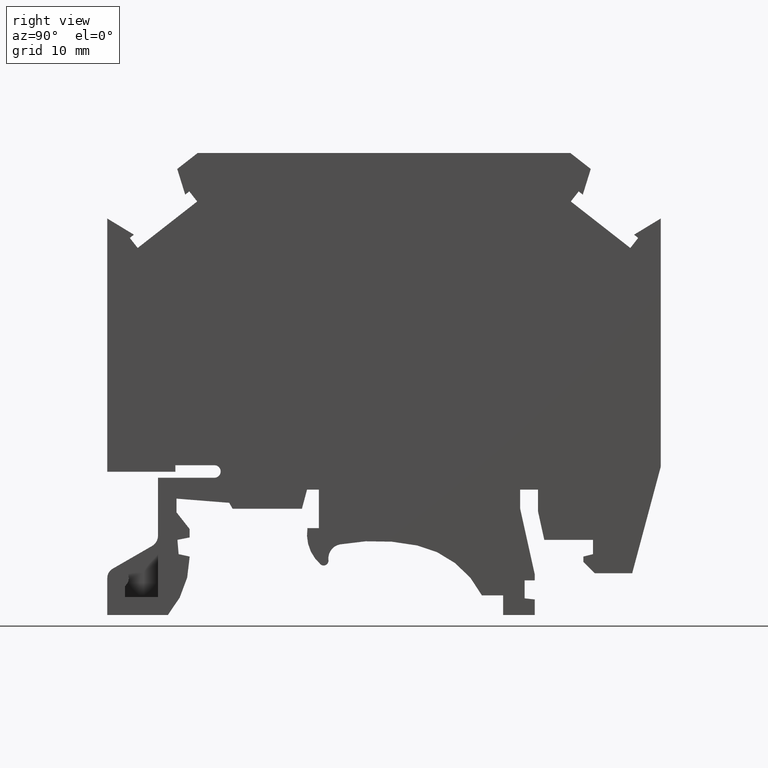
[diagram: clean part render]
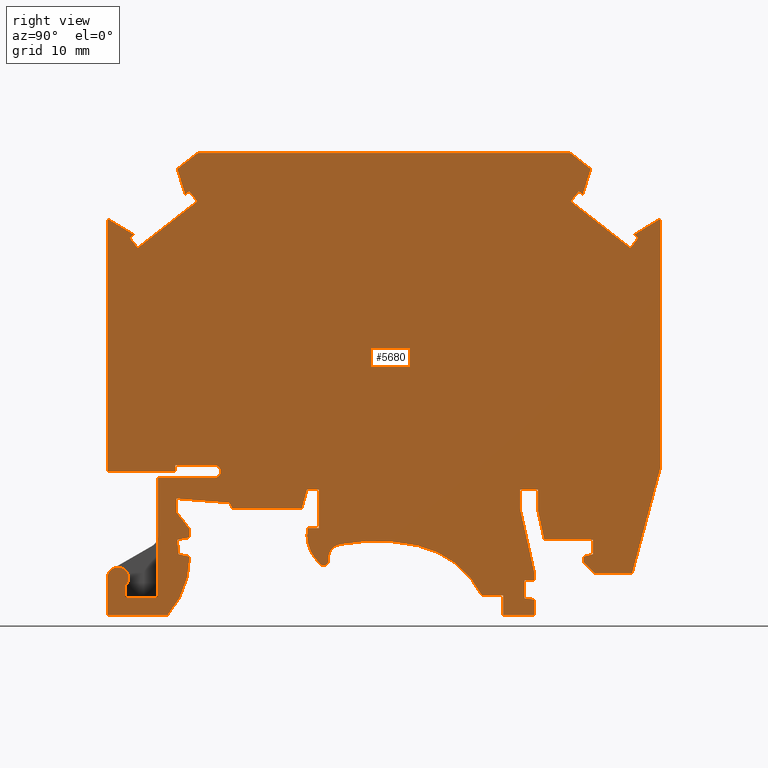
[diagram: same view with one face highlighted and labeled with its STEP entity id]
A machine part, right view. The second image highlights one B-rep face of the part: STEP entity #5680.
In plain terms, the highlighted planar face has unit normal (1, -0, 0).
Its self-contained STEP definition (entity closure, byte-faithful):
#10=CARTESIAN_POINT('',(0.,0.,10.3));
#20=DIRECTION('',(0.,0.,1.));
#30=DIRECTION('',(1.,0.,0.));
#40=AXIS2_PLACEMENT_3D('',#10,#20,#30);
#50=PLANE('',#40);
#60=CARTESIAN_POINT('',(0.,16.2295237515583,10.3));
#70=DIRECTION('',(-1.,0.,0.));
#80=VECTOR('',#70,1.);
#90=LINE('',#60,#80);
#100=CARTESIAN_POINT('',(-39.1520985338078,16.2295237515583,10.3));
#110=VERTEX_POINT('',#100);
#120=CARTESIAN_POINT('',(-44.8520985338077,16.2295237515583,10.3));
#130=VERTEX_POINT('',#120);
#140=EDGE_CURVE('',#110,#130,#90,.T.);
#150=ORIENTED_EDGE('',*,*,#140,.F.);
#160=CARTESIAN_POINT('',(-44.8520985338077,8.88178419700125E-16,10.3));
#170=DIRECTION('',(0.,1.,0.));
#180=VECTOR('',#170,1.);
#190=LINE('',#160,#180);
#200=CARTESIAN_POINT('',(-44.8520985338077,37.4391457022166,10.3));
#210=VERTEX_POINT('',#200);
#220=EDGE_CURVE('',#130,#210,#190,.T.);
#230=ORIENTED_EDGE('',*,*,#220,.F.);
#240=CARTESIAN_POINT('',(0.,10.2034202204307,10.3));
#250=DIRECTION('',(-0.854752900484291,0.519035142465029,0.));
#260=VECTOR('',#250,1.);
#270=LINE('',#240,#260);
#280=CARTESIAN_POINT('',(-42.6201217273836,36.0838131855973,10.3));
#290=VERTEX_POINT('',#280);
#300=EDGE_CURVE('',#290,#210,#270,.T.);
#310=ORIENTED_EDGE('',*,*,#300,.T.);
#320=CARTESIAN_POINT('',(0.,69.3823016911732,10.3));
#330=DIRECTION('',(0.788010753606682,0.61566147532571,0.));
#340=VECTOR('',#330,1.);
#350=LINE('',#320,#340);
#360=CARTESIAN_POINT('',(-42.9648764320866,35.8144612901422,10.3));
#370=VERTEX_POINT('',#360);
#380=EDGE_CURVE('',#370,#290,#350,.T.);
#390=ORIENTED_EDGE('',*,*,#380,.T.);
#400=CARTESIAN_POINT('',(-22.4322131624673,9.53385075155829,10.3));
#410=DIRECTION('',(-0.61566147532571,0.788010753606682,0.));
#420=VECTOR('',#410,1.);
#430=LINE('',#400,#420);
#440=CARTESIAN_POINT('',(-42.3061186534883,34.9712897837833,10.3));
#450=VERTEX_POINT('',#440);
#460=EDGE_CURVE('',#450,#370,#430,.T.);
#470=ORIENTED_EDGE('',*,*,#460,.T.);
#480=CARTESIAN_POINT('',(-56.8069065338077,23.6420326398668,10.3));
#490=DIRECTION('',(-0.788010753606717,-0.615661475325664,0.));
#500=VECTOR('',#490,1.);
#510=LINE('',#480,#500);
#520=CARTESIAN_POINT('',(-37.3219506369257,38.8653486152182,10.3));
#530=VERTEX_POINT('',#520);
#540=EDGE_CURVE('',#530,#450,#510,.T.);
#550=ORIENTED_EDGE('',*,*,#540,.T.);
#560=CARTESIAN_POINT('',(-14.4056729521327,9.53385075155829,10.3));
#570=DIRECTION('',(0.61566147532571,-0.788010753606682,0.));
#580=VECTOR('',#570,1.);
#590=LINE('',#560,#580);
#600=CARTESIAN_POINT('',(-37.9807084155242,39.7085201215773,10.3));
#610=VERTEX_POINT('',#600);
#620=EDGE_CURVE('',#610,#530,#590,.T.);
#630=ORIENTED_EDGE('',*,*,#620,.T.);
#640=CARTESIAN_POINT('',(0.,69.3823016911731,10.3));
#650=DIRECTION('',(0.788010753606682,0.61566147532571,0.));
#660=VECTOR('',#650,1.);
#670=LINE('',#640,#660);
#680=CARTESIAN_POINT('',(-38.3254631202272,39.4391682261223,10.3));
#690=VERTEX_POINT('',#680);
#700=EDGE_CURVE('',#690,#610,#670,.T.);
#710=ORIENTED_EDGE('',*,*,#700,.T.);
#720=CARTESIAN_POINT('',(-26.0660271937965,8.88178419700125E-16,10.3));
#730=DIRECTION('',(0.296834138566406,-0.9549290519099,0.));
#740=VECTOR('',#730,1.);
#750=LINE('',#720,#740);
#760=CARTESIAN_POINT('',(-38.9935626305461,41.5884750243617,10.3));
#770=VERTEX_POINT('',#760);
#780=EDGE_CURVE('',#770,#690,#750,.T.);
#790=ORIENTED_EDGE('',*,*,#780,.T.);
#800=CARTESIAN_POINT('',(0.,72.0535850338968,10.3));
#810=DIRECTION('',(0.788010753606722,0.615661475325658,0.));
#820=VECTOR('',#810,1.);
#830=LINE('',#800,#820);
#840=CARTESIAN_POINT('',(-37.2770985338076,42.9295237515583,10.3));
#850=VERTEX_POINT('',#840);
#860=EDGE_CURVE('',#770,#850,#830,.T.);
#870=ORIENTED_EDGE('',*,*,#860,.F.);
#880=CARTESIAN_POINT('',(-56.8069065338077,42.9295237515583,10.3));
#890=DIRECTION('',(1.,0.,0.));
#900=VECTOR('',#890,1.);
#910=LINE('',#880,#900);
#920=CARTESIAN_POINT('',(-6.07709853380768,42.9295237515583,10.3));
#930=VERTEX_POINT('',#920);
#940=EDGE_CURVE('',#850,#930,#910,.T.);
#950=ORIENTED_EDGE('',*,*,#940,.F.);
#960=CARTESIAN_POINT('',(0.,38.1815740162293,10.3));
#970=DIRECTION('',(-0.788010753606722,0.615661475325658,0.));
#980=VECTOR('',#970,1.);
#990=LINE('',#960,#980);
#1000=CARTESIAN_POINT('',(-4.36063443706933,41.5884750243618,10.3));
#1010=VERTEX_POINT('',#1000);
#1020=EDGE_CURVE('',#1010,#930,#990,.T.);
#1030=ORIENTED_EDGE('',*,*,#1020,.T.);
#1040=CARTESIAN_POINT('',(-17.2881698738166,8.88178419700125E-16,10.3));
#1050=DIRECTION('',(0.296834138566356,0.954929051909915,0.));
#1060=VECTOR('',#1050,1.);
#1070=LINE('',#1040,#1060);
#1080=CARTESIAN_POINT('',(-5.02873394738816,39.4391682261223,10.3));
#1090=VERTEX_POINT('',#1080);
#1100=EDGE_CURVE('',#1090,#1010,#1070,.T.);
#1110=ORIENTED_EDGE('',*,*,#1100,.T.);
#1120=CARTESIAN_POINT('',(0.,35.510290673501,10.3));
#1130=DIRECTION('',(0.788010753606682,-0.61566147532571,0.));
#1140=VECTOR('',#1130,1.);
#1150=LINE('',#1120,#1140);
#1160=CARTESIAN_POINT('',(-5.37348865209113,39.7085201215773,10.3));
#1170=VERTEX_POINT('',#1160);
#1180=EDGE_CURVE('',#1170,#1090,#1150,.T.);
#1190=ORIENTED_EDGE('',*,*,#1180,.T.);
#1200=CARTESIAN_POINT('',(-28.9485241154827,9.53385075155829,10.3));
#1210=DIRECTION('',(-0.61566147532571,-0.788010753606682,0.));
#1220=VECTOR('',#1210,1.);
#1230=LINE('',#1200,#1220);
#1240=CARTESIAN_POINT('',(-6.03224643068964,38.8653486152182,10.3));
#1250=VERTEX_POINT('',#1240);
#1260=EDGE_CURVE('',#1170,#1250,#1230,.T.);
#1270=ORIENTED_EDGE('',*,*,#1260,.F.);
#1280=CARTESIAN_POINT('',(-56.8069065338077,78.534860744549,10.3));
#1290=DIRECTION('',(0.788010753606717,-0.615661475325664,0.));
#1300=VECTOR('',#1290,1.);
#1310=LINE('',#1280,#1300);
#1320=CARTESIAN_POINT('',(-1.04807841412707,34.9712897837833,10.3));
#1330=VERTEX_POINT('',#1320);
#1340=EDGE_CURVE('',#1250,#1330,#1310,.T.);
#1350=ORIENTED_EDGE('',*,*,#1340,.F.);
#1360=CARTESIAN_POINT('',(-20.9219839051481,9.53385075155829,10.3));
#1370=DIRECTION('',(0.61566147532571,0.788010753606682,0.));
#1380=VECTOR('',#1370,1.);
#1390=LINE('',#1360,#1380);
#1400=CARTESIAN_POINT('',(-0.38932063552879,35.8144612901421,10.3));
#1410=VERTEX_POINT('',#1400);
#1420=EDGE_CURVE('',#1330,#1410,#1390,.T.);
#1430=ORIENTED_EDGE('',*,*,#1420,.F.);
#1440=CARTESIAN_POINT('',(0.,35.510290673501,10.3));
#1450=DIRECTION('',(-0.788010753606682,0.61566147532571,0.));
#1460=VECTOR('',#1450,1.);
#1470=LINE('',#1440,#1460);
#1480=CARTESIAN_POINT('',(-0.734075340231865,36.0838131855972,10.3));
#1490=VERTEX_POINT('',#1480);
#1500=EDGE_CURVE('',#1410,#1490,#1470,.T.);
#1510=ORIENTED_EDGE('',*,*,#1500,.F.);
#1520=CARTESIAN_POINT('',(0.,36.5295687935413,10.3));
#1530=DIRECTION('',(-0.854752900484266,-0.519035142465069,0.));
#1540=VECTOR('',#1530,1.);
#1550=LINE('',#1520,#1540);
#1560=CARTESIAN_POINT('',(1.49790146619231,37.4391457022167,10.3));
#1570=VERTEX_POINT('',#1560);
#1580=EDGE_CURVE('',#1570,#1490,#1550,.T.);
#1590=ORIENTED_EDGE('',*,*,#1580,.T.);
#1600=CARTESIAN_POINT('',(1.49790146619231,8.88178419700125E-16,10.3));
#1610=DIRECTION('',(0.,-1.,0.));
#1620=VECTOR('',#1610,1.);
#1630=LINE('',#1600,#1620);
#1640=CARTESIAN_POINT('',(1.49790146619231,16.6504165609533,10.3));
#1650=VERTEX_POINT('',#1640);
#1660=EDGE_CURVE('',#1570,#1650,#1630,.T.);
#1670=ORIENTED_EDGE('',*,*,#1660,.F.);
#1680=CARTESIAN_POINT('',(-0.408976595318013,9.53385075155829,10.3));
#1690=DIRECTION('',(-0.258819045102521,-0.965925826289068,0.));
#1700=VECTOR('',#1690,1.);
#1710=LINE('',#1680,#1700);
#1720=CARTESIAN_POINT('',(-0.892444557849712,7.7295237515582,10.3));
#1730=VERTEX_POINT('',#1720);
#1740=EDGE_CURVE('',#1650,#1730,#1710,.T.);
#1750=ORIENTED_EDGE('',*,*,#1740,.F.);
#1760=CARTESIAN_POINT('',(-56.8069065338077,7.7295237515582,10.3));
#1770=DIRECTION('',(1.,0.,0.));
#1780=VECTOR('',#1770,1.);
#1790=LINE('',#1760,#1780);
#1800=CARTESIAN_POINT('',(-4.02709853380777,7.7295237515582,10.3));
#1810=VERTEX_POINT('',#1800);
#1820=EDGE_CURVE('',#1810,#1730,#1790,.T.);
#1830=ORIENTED_EDGE('',*,*,#1820,.T.);
#1840=CARTESIAN_POINT('',(-56.8069065338077,60.5093317515567,10.3));
#1850=DIRECTION('',(-0.707106781186557,0.707106781186538,0.));
#1860=VECTOR('',#1850,1.);
#1870=LINE('',#1840,#1860);
#1880=CARTESIAN_POINT('',(-4.97709853380779,8.67952375155819,10.3));
#1890=VERTEX_POINT('',#1880);
#1900=EDGE_CURVE('',#1810,#1890,#1870,.T.);
#1910=ORIENTED_EDGE('',*,*,#1900,.F.);
#1920=CARTESIAN_POINT('',(-4.97709853380779,9.53385075155829,10.3));
#1930=DIRECTION('',(0.,1.,0.));
#1940=VECTOR('',#1930,1.);
#1950=LINE('',#1920,#1940);
#1960=CARTESIAN_POINT('',(-4.97709853380779,9.12952375155822,10.3));
#1970=VERTEX_POINT('',#1960);
#1980=EDGE_CURVE('',#1890,#1970,#1950,.T.);
#1990=ORIENTED_EDGE('',*,*,#1980,.F.);
#2000=CARTESIAN_POINT('',(-56.8069065338077,-3.82792824844155,10.3));
#2010=DIRECTION('',(-0.970142500145333,-0.242535625036329,0.));
#2020=VECTOR('',#2010,1.);
#2030=LINE('',#2000,#2020);
#2040=CARTESIAN_POINT('',(-4.17709853380779,9.3295237515582,10.3));
#2050=VERTEX_POINT('',#2040);
#2060=EDGE_CURVE('',#2050,#1970,#2030,.T.);
#2070=ORIENTED_EDGE('',*,*,#2060,.T.);
#2080=CARTESIAN_POINT('',(-4.1770985338078,9.53385075155829,10.3));
#2090=DIRECTION('',(0.,1.,0.));
#2100=VECTOR('',#2090,1.);
#2110=LINE('',#2080,#2100);
#2120=CARTESIAN_POINT('',(-4.17709853380779,10.5295237515582,10.3));
#2130=VERTEX_POINT('',#2120);
#2140=EDGE_CURVE('',#2050,#2130,#2110,.T.);
#2150=ORIENTED_EDGE('',*,*,#2140,.F.);
#2160=CARTESIAN_POINT('',(-56.8069065338077,10.5295237515582,10.3));
#2170=DIRECTION('',(-1.,2.71413735556692E-16,0.));
#2180=VECTOR('',#2170,1.);
#2190=LINE('',#2160,#2180);
#2200=CARTESIAN_POINT('',(-8.25209853380777,10.5295237515582,10.3));
#2210=VERTEX_POINT('',#2200);
#2220=EDGE_CURVE('',#2130,#2210,#2190,.T.);
#2230=ORIENTED_EDGE('',*,*,#2220,.F.);
#2240=CARTESIAN_POINT('',(-8.0313631439701,9.53385075155829,10.3));
#2250=DIRECTION('',(0.216439613938109,-0.976296007119932,0.));
#2260=VECTOR('',#2250,1.);
#2270=LINE('',#2240,#2260);
#2280=CARTESIAN_POINT('',(-8.77709853380779,12.8976457159808,10.3));
#2290=VERTEX_POINT('',#2280);
#2300=EDGE_CURVE('',#2290,#2210,#2270,.T.);
#2310=ORIENTED_EDGE('',*,*,#2300,.T.);
#2320=CARTESIAN_POINT('',(-8.77709853380779,9.53385075155829,10.3));
#2330=DIRECTION('',(0.,1.,0.));
#2340=VECTOR('',#2330,1.);
#2350=LINE('',#2320,#2340);
#2360=CARTESIAN_POINT('',(-8.77709853380779,14.7295237515582,10.3));
#2370=VERTEX_POINT('',#2360);
#2380=EDGE_CURVE('',#2290,#2370,#2350,.T.);
#2390=ORIENTED_EDGE('',*,*,#2380,.F.);
#2400=CARTESIAN_POINT('',(-56.8069065338077,14.7295237515582,10.3));
#2410=DIRECTION('',(-1.,0.,0.));
#2420=VECTOR('',#2410,1.);
#2430=LINE('',#2400,#2420);
#2440=CARTESIAN_POINT('',(-10.2770985338077,14.7295237515582,10.3));
#2450=VERTEX_POINT('',#2440);
#2460=EDGE_CURVE('',#2370,#2450,#2430,.T.);
#2470=ORIENTED_EDGE('',*,*,#2460,.F.);
#2480=CARTESIAN_POINT('',(-10.2770985338077,9.53385075155829,10.3));
#2490=DIRECTION('',(0.,-1.,0.));
#2500=VECTOR('',#2490,1.);
#2510=LINE('',#2480,#2500);
#2520=CARTESIAN_POINT('',(-10.2770985338077,13.1551416685442,10.3));
#2530=VERTEX_POINT('',#2520);
#2540=EDGE_CURVE('',#2450,#2530,#2510,.T.);
#2550=ORIENTED_EDGE('',*,*,#2540,.F.);
#2560=CARTESIAN_POINT('',(-9.47427766563456,9.53385075155829,10.3));
#2570=DIRECTION('',(0.216439613938103,-0.976296007119933,0.));
#2580=VECTOR('',#2570,1.);
#2590=LINE('',#2560,#2580);
#2600=CARTESIAN_POINT('',(-9.0520985338077,7.62952375155818,10.3));
#2610=VERTEX_POINT('',#2600);
#2620=EDGE_CURVE('',#2530,#2610,#2590,.T.);
#2630=ORIENTED_EDGE('',*,*,#2620,.F.);
#2640=CARTESIAN_POINT('',(-9.0520985338077,9.53385075155829,10.3));
#2650=DIRECTION('',(0.,1.,0.));
#2660=VECTOR('',#2650,1.);
#2670=LINE('',#2640,#2660);
#2680=CARTESIAN_POINT('',(-9.0520985338077,7.12952375155817,10.3));
#2690=VERTEX_POINT('',#2680);
#2700=EDGE_CURVE('',#2690,#2610,#2670,.T.);
#2710=ORIENTED_EDGE('',*,*,#2700,.T.);
#2720=CARTESIAN_POINT('',(-56.8069065338077,7.12952375155817,10.3));
#2730=DIRECTION('',(-1.,0.,0.));
#2740=VECTOR('',#2730,1.);
#2750=LINE('',#2720,#2740);
#2760=CARTESIAN_POINT('',(-9.90209853380769,7.12952375155817,10.3));
#2770=VERTEX_POINT('',#2760);
#2780=EDGE_CURVE('',#2690,#2770,#2750,.T.);
#2790=ORIENTED_EDGE('',*,*,#2780,.F.);
#2800=CARTESIAN_POINT('',(-9.90209853380769,9.53385075155829,10.3));
#2810=DIRECTION('',(0.,-1.,0.));
#2820=VECTOR('',#2810,1.);
#2830=LINE('',#2800,#2820);
#2840=CARTESIAN_POINT('',(-9.9020985338077,5.62952375155818,10.3));
#2850=VERTEX_POINT('',#2840);
#2860=EDGE_CURVE('',#2770,#2850,#2830,.T.);
#2870=ORIENTED_EDGE('',*,*,#2860,.F.);
#2880=CARTESIAN_POINT('',(0.,4.5532086935356,10.3));
#2890=DIRECTION('',(0.994144463069457,-0.108059180768419,0.));
#2900=VECTOR('',#2890,1.);
#2910=LINE('',#2880,#2900);
#2920=CARTESIAN_POINT('',(-9.0520985338077,5.53713244721035,10.3));
#2930=VERTEX_POINT('',#2920);
#2940=EDGE_CURVE('',#2850,#2930,#2910,.T.);
#2950=ORIENTED_EDGE('',*,*,#2940,.F.);
#2960=CARTESIAN_POINT('',(-9.0520985338077,8.88178419700125E-16,10.3));
#2970=DIRECTION('',(0.,1.,0.));
#2980=VECTOR('',#2970,1.);
#2990=LINE('',#2960,#2980);
#3000=CARTESIAN_POINT('',(-9.0520985338077,4.22952375155818,10.3));
#3010=VERTEX_POINT('',#3000);
#3020=EDGE_CURVE('',#3010,#2930,#2990,.T.);
#3030=ORIENTED_EDGE('',*,*,#3020,.T.);
#3040=CARTESIAN_POINT('',(0.,4.22952375155818,10.3));
#3050=DIRECTION('',(-1.,0.,0.));
#3060=VECTOR('',#3050,1.);
#3070=LINE('',#3040,#3060);
#3080=CARTESIAN_POINT('',(-11.7020985338077,4.22952375155818,10.3));
#3090=VERTEX_POINT('',#3080);
#3100=EDGE_CURVE('',#3010,#3090,#3070,.T.);
#3110=ORIENTED_EDGE('',*,*,#3100,.F.);
#3120=CARTESIAN_POINT('',(-11.7020985338077,9.53385075155829,10.3));
#3130=DIRECTION('',(0.,-1.,0.));
#3140=VECTOR('',#3130,1.);
#3150=LINE('',#3120,#3140);
#3160=CARTESIAN_POINT('',(-11.7020985338077,5.87952375155818,10.3));
#3170=VERTEX_POINT('',#3160);
#3180=EDGE_CURVE('',#3170,#3090,#3150,.T.);
#3190=ORIENTED_EDGE('',*,*,#3180,.T.);
#3200=CARTESIAN_POINT('',(-56.8069065338077,5.87952375155818,10.3));
#3210=DIRECTION('',(-1.,0.,0.));
#3220=VECTOR('',#3210,1.);
#3230=LINE('',#3200,#3220);
#3240=CARTESIAN_POINT('',(-13.4760350012745,5.87952375155818,10.3));
#3250=VERTEX_POINT('',#3240);
#3260=EDGE_CURVE('',#3170,#3250,#3230,.T.);
#3270=ORIENTED_EDGE('',*,*,#3260,.F.);
#3280=CARTESIAN_POINT('',(-20.6003231168159,2.24022177909756,10.3));
#3290=DIRECTION('',(0.,0.,1.));
#3300=DIRECTION('',(1.,0.,0.));
#3310=AXIS2_PLACEMENT_3D('',#3280,#3290,#3300);
#3320=CIRCLE('',#3310,8.00000000000001);
#3330=CARTESIAN_POINT('',(-18.8912739295069,10.0555369279165,10.3));
#3340=VERTEX_POINT('',#3330);
#3350=EDGE_CURVE('',#3250,#3340,#3320,.T.);
#3360=ORIENTED_EDGE('',*,*,#3350,.F.);
#3370=CARTESIAN_POINT('',(-22.3520985338077,-5.77047624844183,10.3));
#3380=DIRECTION('',(0.,0.,1.));
#3390=DIRECTION('',(1.,0.,0.));
#3400=AXIS2_PLACEMENT_3D('',#3370,#3380,#3390);
#3410=CIRCLE('',#3400,16.2);
#3420=CARTESIAN_POINT('',(-25.3616999403209,10.1475104136305,10.3));
#3430=VERTEX_POINT('',#3420);
#3440=EDGE_CURVE('',#3340,#3430,#3410,.T.);
#3450=ORIENTED_EDGE('',*,*,#3440,.F.);
#3460=CARTESIAN_POINT('',(-25.1387665028014,8.96840029051405,10.3));
#3470=DIRECTION('',(0.,0.,1.));
#3480=DIRECTION('',(1.,0.,0.));
#3490=AXIS2_PLACEMENT_3D('',#3460,#3470,#3480);
#3500=CIRCLE('',#3490,1.19999999999999);
#3510=CARTESIAN_POINT('',(-26.3300155260562,8.82374288629714,10.3));
#3520=VERTEX_POINT('',#3510);
#3530=EDGE_CURVE('',#3430,#3520,#3500,.T.);
#3540=ORIENTED_EDGE('',*,*,#3530,.F.);
#3550=CARTESIAN_POINT('',(-26.7270985338077,8.77552375155817,10.3));
#3560=DIRECTION('',(0.,0.,1.));
#3570=DIRECTION('',(1.,0.,0.));
#3580=AXIS2_PLACEMENT_3D('',#3550,#3560,#3570);
#3590=CIRCLE('',#3580,0.399999999999988);
#3600=CARTESIAN_POINT('',(-26.9911861643017,8.47509451959159,10.3));
#3610=VERTEX_POINT('',#3600);
#3620=EDGE_CURVE('',#3610,#3520,#3590,.T.);
#3630=ORIENTED_EDGE('',*,*,#3620,.T.);
#3640=CARTESIAN_POINT('',(-24.779452258914,10.9911893373118,10.3));
#3650=DIRECTION('',(0.,0.,1.));
#3660=DIRECTION('',(1.,0.,0.));
#3670=AXIS2_PLACEMENT_3D('',#3640,#3650,#3660);
#3680=CIRCLE('',#3670,3.34999999999999);
#3690=CARTESIAN_POINT('',(-28.0887237545537,11.5119792835918,10.3));
#3700=VERTEX_POINT('',#3690);
#3710=EDGE_CURVE('',#3700,#3610,#3680,.T.);
#3720=ORIENTED_EDGE('',*,*,#3710,.T.);
#3730=CARTESIAN_POINT('',(-21.6770985338077,11.5119792835918,10.3));
#3740=DIRECTION('',(1.,0.,0.));
#3750=VECTOR('',#3740,1.);
#3760=LINE('',#3730,#3750);
#3770=CARTESIAN_POINT('',(-27.1270985338077,11.5119792835918,10.3));
#3780=VERTEX_POINT('',#3770);
#3790=EDGE_CURVE('',#3700,#3780,#3760,.T.);
#3800=ORIENTED_EDGE('',*,*,#3790,.F.);
#3810=CARTESIAN_POINT('',(-27.1270985338077,9.53385075155829,10.3));
#3820=DIRECTION('',(0.,1.,0.));
#3830=VECTOR('',#3820,1.);
#3840=LINE('',#3810,#3830);
#3850=CARTESIAN_POINT('',(-27.1270985338077,14.7295237515582,10.3));
#3860=VERTEX_POINT('',#3850);
#3870=EDGE_CURVE('',#3780,#3860,#3840,.T.);
#3880=ORIENTED_EDGE('',*,*,#3870,.F.);
#3890=CARTESIAN_POINT('',(-56.8069065338077,14.7295237515582,10.3));
#3900=DIRECTION('',(-1.,0.,0.));
#3910=VECTOR('',#3900,1.);
#3920=LINE('',#3890,#3910);
#3930=CARTESIAN_POINT('',(-28.1233798259179,14.7295237515582,10.3));
#3940=VERTEX_POINT('',#3930);
#3950=EDGE_CURVE('',#3860,#3940,#3920,.T.);
#3960=ORIENTED_EDGE('',*,*,#3950,.F.);
#3970=CARTESIAN_POINT('',(-29.515556210404,9.53385075155829,10.3));
#3980=DIRECTION('',(0.258819045102504,0.965925826289073,0.));
#3990=VECTOR('',#3980,1.);
#4000=LINE('',#3970,#3990);
#4010=CARTESIAN_POINT('',(-28.5520985338077,13.1295237515582,10.3));
#4020=VERTEX_POINT('',#4010);
#4030=EDGE_CURVE('',#4020,#3940,#4000,.T.);
#4040=ORIENTED_EDGE('',*,*,#4030,.T.);
#4050=CARTESIAN_POINT('',(0.,13.1295237515583,10.3));
#4060=DIRECTION('',(-1.,-5.25286014369684E-15,0.));
#4070=VECTOR('',#4060,1.);
#4080=LINE('',#4050,#4070);
#4090=CARTESIAN_POINT('',(-34.3520985338076,13.1295237515581,10.3));
#4100=VERTEX_POINT('',#4090);
#4110=EDGE_CURVE('',#4020,#4100,#4080,.T.);
#4120=ORIENTED_EDGE('',*,*,#4110,.F.);
#4130=CARTESIAN_POINT('',(-26.771764461514,8.88178419700125E-16,10.3));
#4140=DIRECTION('',(-0.5,0.866025403784439,0.));
#4150=VECTOR('',#4140,1.);
#4160=LINE('',#4130,#4150);
#4170=CARTESIAN_POINT('',(-34.6407736684025,13.6295237515583,10.3));
#4180=VERTEX_POINT('',#4170);
#4190=EDGE_CURVE('',#4100,#4180,#4160,.T.);
#4200=ORIENTED_EDGE('',*,*,#4190,.F.);
#4210=CARTESIAN_POINT('',(-56.8069065338077,15.3882122951596,10.3));
#4220=DIRECTION('',(-0.996867266307106,0.0790926884446178,0.));
#4230=VECTOR('',#4220,1.);
#4240=LINE('',#4210,#4230);
#4250=CARTESIAN_POINT('',(-39.0520985338077,13.9795237515583,10.3));
#4260=VERTEX_POINT('',#4250);
#4270=EDGE_CURVE('',#4180,#4260,#4240,.T.);
#4280=ORIENTED_EDGE('',*,*,#4270,.F.);
#4290=CARTESIAN_POINT('',(-39.0520985338077,9.53385075155828,10.3));
#4300=DIRECTION('',(0.,-1.,0.));
#4310=VECTOR('',#4300,1.);
#4320=LINE('',#4290,#4310);
#4330=CARTESIAN_POINT('',(-39.0520985338077,12.8295237515583,10.3));
#4340=VERTEX_POINT('',#4330);
#4350=EDGE_CURVE('',#4260,#4340,#4320,.T.);
#4360=ORIENTED_EDGE('',*,*,#4350,.F.);
#4370=CARTESIAN_POINT('',(-39.0520985338077,12.8295237515583,10.3));
#4380=DIRECTION('',(0.617821551931904,-0.786318338822423,0.));
#4390=VECTOR('',#4380,1.);
#4400=LINE('',#4370,#4390);
#4410=CARTESIAN_POINT('',(-37.9520985338077,11.4295237515583,10.3));
#4420=VERTEX_POINT('',#4410);
#4430=EDGE_CURVE('',#4340,#4420,#4400,.T.);
#4440=ORIENTED_EDGE('',*,*,#4430,.F.);
#4450=CARTESIAN_POINT('',(-37.9520985338077,15.7295237515583,10.3));
#4460=DIRECTION('',(0.,1.,0.));
#4470=VECTOR('',#4460,1.);
#4480=LINE('',#4450,#4470);
#4490=CARTESIAN_POINT('',(-37.9520985338077,10.7295237515583,10.3));
#4500=VERTEX_POINT('',#4490);
#4510=EDGE_CURVE('',#4500,#4420,#4480,.T.);
#4520=ORIENTED_EDGE('',*,*,#4510,.T.);
#4530=CARTESIAN_POINT('',(-37.9520985338077,10.7295237515583,10.3));
#4540=DIRECTION('',(-0.981490592025699,-0.191510359419648,0.));
#4550=VECTOR('',#4540,1.);
#4560=LINE('',#4530,#4550);
#4570=CARTESIAN_POINT('',(-38.9770985338077,10.5295237515583,10.3));
#4580=VERTEX_POINT('',#4570);
#4590=EDGE_CURVE('',#4500,#4580,#4560,.T.);
#4600=ORIENTED_EDGE('',*,*,#4590,.F.);
#4610=CARTESIAN_POINT('',(-38.9770985338077,10.5295237515583,10.3));
#4620=DIRECTION('',(0.0830454798537353,-0.99654575824488,0.));
#4630=VECTOR('',#4620,1.);
#4640=LINE('',#4610,#4630);
#4650=CARTESIAN_POINT('',(-38.8770985338077,9.32952375155828,10.3));
#4660=VERTEX_POINT('',#4650);
#4670=EDGE_CURVE('',#4580,#4660,#4640,.T.);
#4680=ORIENTED_EDGE('',*,*,#4670,.F.);
#4690=CARTESIAN_POINT('',(0.,0.923664609113365,10.3));
#4700=DIRECTION('',(0.977414165439867,-0.211332792527539,0.));
#4710=VECTOR('',#4700,1.);
#4720=LINE('',#4690,#4710);
#4730=CARTESIAN_POINT('',(-37.949420700094,9.12894476048504,10.3));
#4740=VERTEX_POINT('',#4730);
#4750=EDGE_CURVE('',#4660,#4740,#4720,.T.);
#4760=ORIENTED_EDGE('',*,*,#4750,.F.);
#4770=CARTESIAN_POINT('',(-45.4194206776555,9.12952375155828,10.3));
#4780=DIRECTION('',(0.,0.,1.));
#4790=DIRECTION('',(1.,0.,0.));
#4800=AXIS2_PLACEMENT_3D('',#4770,#4780,#4790);
#4810=CIRCLE('',#4800,7.47);
#4820=CARTESIAN_POINT('',(-39.7810787227897,4.22952375155828,10.3));
#4830=VERTEX_POINT('',#4820);
#4840=EDGE_CURVE('',#4830,#4740,#4810,.T.);
#4850=ORIENTED_EDGE('',*,*,#4840,.T.);
#4860=CARTESIAN_POINT('',(-56.8069065338077,4.22952375155828,10.3));
#4870=DIRECTION('',(1.,0.,0.));
#4880=VECTOR('',#4870,1.);
#4890=LINE('',#4860,#4880);
#4900=CARTESIAN_POINT('',(-44.8520985338077,4.22952375155828,10.3));
#4910=VERTEX_POINT('',#4900);
#4920=EDGE_CURVE('',#4910,#4830,#4890,.T.);
#4930=ORIENTED_EDGE('',*,*,#4920,.T.);
#4940=CARTESIAN_POINT('',(-44.8520985338077,15.7295237515583,10.3));
#4950=DIRECTION('',(0.,1.,0.));
#4960=VECTOR('',#4950,1.);
#4970=LINE('',#4940,#4960);
#4980=CARTESIAN_POINT('',(-44.8520985338384,7.32952375155828,10.3));
#4990=VERTEX_POINT('',#4980);
#5000=EDGE_CURVE('',#4910,#4990,#4970,.T.);
#5010=ORIENTED_EDGE('',*,*,#5000,.F.);
#5020=CARTESIAN_POINT('',(-43.9520985338077,7.32952375155828,10.3));
#5030=DIRECTION('',(0.,0.,1.));
#5040=DIRECTION('',(1.,0.,0.));
#5050=AXIS2_PLACEMENT_3D('',#5020,#5030,#5040);
#5060=CIRCLE('',#5050,0.9);
#5070=CARTESIAN_POINT('',(-43.3520985338077,6.6587033582671,10.3));
#5080=VERTEX_POINT('',#5070);
#5090=EDGE_CURVE('',#5080,#4990,#5060,.T.);
#5100=ORIENTED_EDGE('',*,*,#5090,.T.);
#5110=CARTESIAN_POINT('',(-43.3520985338077,9.53385075155828,10.3));
#5120=DIRECTION('',(0.,-1.,0.));
#5130=VECTOR('',#5120,1.);
#5140=LINE('',#5110,#5130);
#5150=CARTESIAN_POINT('',(-43.3520985338077,5.72952375155828,10.3));
#5160=VERTEX_POINT('',#5150);
#5170=EDGE_CURVE('',#5080,#5160,#5140,.T.);
#5180=ORIENTED_EDGE('',*,*,#5170,.F.);
#5190=CARTESIAN_POINT('',(-56.8069065338077,5.7295237515583,10.3));
#5200=DIRECTION('',(1.,-1.54684216171898E-15,0.));
#5210=VECTOR('',#5200,1.);
#5220=LINE('',#5190,#5210);
#5230=CARTESIAN_POINT('',(-40.6020985338077,5.72952375155827,10.3));
#5240=VERTEX_POINT('',#5230);
#5250=EDGE_CURVE('',#5160,#5240,#5220,.T.);
#5260=ORIENTED_EDGE('',*,*,#5250,.F.);
#5270=CARTESIAN_POINT('',(-40.6020985338077,15.7295237515583,10.3));
#5280=DIRECTION('',(0.,1.,0.));
#5290=VECTOR('',#5280,1.);
#5300=LINE('',#5270,#5290);
#5310=CARTESIAN_POINT('',(-40.6020985338077,15.7295237515581,10.3));
#5320=VERTEX_POINT('',#5310);
#5330=EDGE_CURVE('',#5240,#5320,#5300,.T.);
#5340=ORIENTED_EDGE('',*,*,#5330,.F.);
#5350=CARTESIAN_POINT('',(-56.8069065338077,15.7295237515581,10.3));
#5360=DIRECTION('',(-1.,-3.21581169129174E-15,0.));
#5370=VECTOR('',#5360,1.);
#5380=LINE('',#5350,#5370);
#5390=CARTESIAN_POINT('',(-35.8770985306198,15.7295237515581,10.3));
#5400=VERTEX_POINT('',#5390);
#5410=EDGE_CURVE('',#5400,#5320,#5380,.T.);
#5420=ORIENTED_EDGE('',*,*,#5410,.T.);
#5430=CARTESIAN_POINT('',(-35.8770985338078,16.2545237515581,10.3));
#5440=DIRECTION('',(0.,0.,-1.));
#5450=DIRECTION('',(-1.,0.,0.));
#5460=AXIS2_PLACEMENT_3D('',#5430,#5440,#5450);
#5470=CIRCLE('',#5460,0.525);
#5480=CARTESIAN_POINT('',(-35.8770985338078,16.7795237515581,10.3));
#5490=VERTEX_POINT('',#5480);
#5500=EDGE_CURVE('',#5490,#5400,#5470,.T.);
#5510=ORIENTED_EDGE('',*,*,#5500,.T.);
#5520=CARTESIAN_POINT('',(0.,16.7795237515581,10.3));
#5530=DIRECTION('',(1.,0.,0.));
#5540=VECTOR('',#5530,1.);
#5550=LINE('',#5520,#5540);
#5560=CARTESIAN_POINT('',(-39.1520985338078,16.7795237515581,10.3));
#5570=VERTEX_POINT('',#5560);
#5580=EDGE_CURVE('',#5570,#5490,#5550,.T.);
#5590=ORIENTED_EDGE('',*,*,#5580,.T.);
#5600=CARTESIAN_POINT('',(-39.1520985338078,8.88178419700125E-16,10.3));
#5610=DIRECTION('',(0.,1.,0.));
#5620=VECTOR('',#5610,1.);
#5630=LINE('',#5600,#5620);
#5640=EDGE_CURVE('',#110,#5570,#5630,.T.);
#5650=ORIENTED_EDGE('',*,*,#5640,.T.);
#5660=EDGE_LOOP('',(#5650,#5590,#5510,#5420,#5340,#5260,#5180,#5100,
#5010,#4930,#4850,#4760,#4680,#4600,#4520,#4440,#4360,#4280,#4200,#4120,
#4040,#3960,#3880,#3800,#3720,#3630,#3540,#3450,#3360,#3270,#3190,#3110,
#3030,#2950,#2870,#2790,#2710,#2630,#2550,#2470,#2390,#2310,#2230,#2150,
#2070,#1990,#1910,#1830,#1750,#1670,#1590,#1510,#1430,#1350,#1270,#1190,
#1110,#1030,#950,#870,#790,#710,#630,#550,#470,#390,#310,#230,#150));
#5670=FACE_OUTER_BOUND('',#5660,.T.);
#5680=ADVANCED_FACE('',(#5670),#50,.T.);